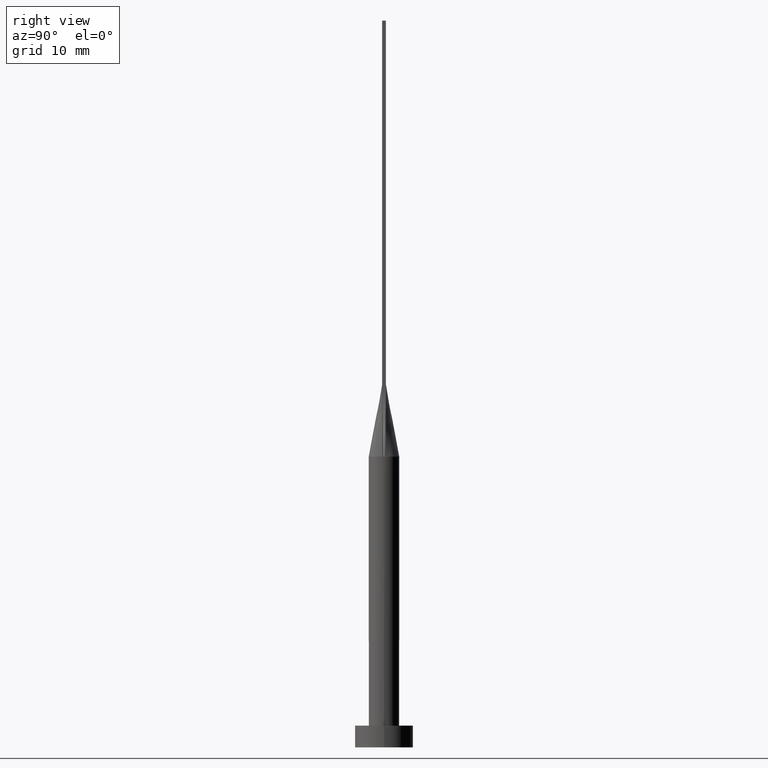
[diagram: clean part render]
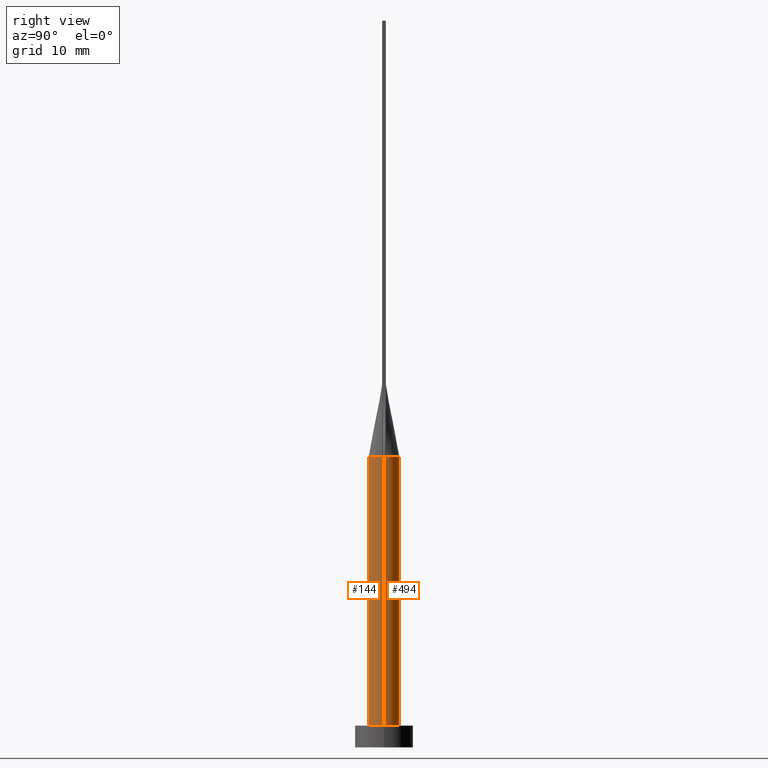
[diagram: same view with one multi-face feature highlighted, each face labeled with its STEP entity id]
A machine part, right view. The highlighted faces form ONE feature: a constant-radius fillet chain: 2 tangent blend faces with common blend radius 2.1 mm. The faces share edges in the B-rep.
Their STEP definitions:
[1] entity #144 (Cylinder):
#3 = ORIENTED_EDGE ( 'NONE', *, *, #189, .T. ) ;
#16 = VERTEX_POINT ( 'NONE', #438 ) ;
#65 = ORIENTED_EDGE ( 'NONE', *, *, #239, .F. ) ;
#69 = ORIENTED_EDGE ( 'NONE', *, *, #548, .F. ) ;
#75 = EDGE_CURVE ( 'NONE', #335, #207, #285, .T. ) ;
#84 = AXIS2_PLACEMENT_3D ( 'NONE', #363, #316, #540 ) ;
#87 = CARTESIAN_POINT ( 'NONE',  ( -2.082216547150284924, -0.2739753355370637133, 40.00000000000000000 ) ) ;
#100 = CIRCLE ( 'NONE', #240, 2.100000000000000089 ) ;
#110 = CARTESIAN_POINT ( 'NONE',  ( 2.100000000000000089, 2.571758278209441957E-16, 40.00000000000000000 ) ) ;
#121 = DIRECTION ( 'NONE',  ( 1.000000000000000000, -2.131628207280300558E-14, 0.000000000000000000 ) ) ;
#123 = VECTOR ( 'NONE', #502, 1000.000000000000000 ) ;
#130 = EDGE_LOOP ( 'NONE', ( #69, #65, #206, #226, #3, #563 ) ) ;
#144 = ADVANCED_FACE ( 'NONE', ( #580 ), #183, .T. ) ;
#145 = CARTESIAN_POINT ( 'NONE',  ( 2.082216499796571085, -0.2739752411676472654, 40.00000000000000000 ) ) ;
#151 = AXIS2_PLACEMENT_3D ( 'NONE', #537, #577, #179 ) ;
#161 = VECTOR ( 'NONE', #437, 1000.000000000000000 ) ;
#163 = CARTESIAN_POINT ( 'NONE',  ( 0.000000000000000000, 0.000000000000000000, 40.00000000000000000 ) ) ;
#179 = DIRECTION ( 'NONE',  ( 1.000000000000000000, 0.000000000000000000, 0.000000000000000000 ) ) ;
#183 = CYLINDRICAL_SURFACE ( 'NONE', #84, 2.100000000000000089 ) ;
#189 = EDGE_CURVE ( 'NONE', #16, #380, #323, .T. ) ;
#206 = ORIENTED_EDGE ( 'NONE', *, *, #75, .F. ) ;
#207 = VERTEX_POINT ( 'NONE', #145 ) ;
#226 = ORIENTED_EDGE ( 'NONE', *, *, #435, .F. ) ;
#239 = EDGE_CURVE ( 'NONE', #207, #308, #564, .T. ) ;
#240 = AXIS2_PLACEMENT_3D ( 'NONE', #572, #477, #251 ) ;
#241 = CARTESIAN_POINT ( 'NONE',  ( 0.000000000000000000, 0.000000000000000000, 40.00000000000000000 ) ) ;
#251 = DIRECTION ( 'NONE',  ( 1.000000000000000000, 0.000000000000000000, 0.000000000000000000 ) ) ;
#285 = CIRCLE ( 'NONE', #402, 2.100000000000000089 ) ;
#306 = CARTESIAN_POINT ( 'NONE',  ( 2.099961659741046649, 5.289748680732500402E-16, 40.00000000000000000 ) ) ;
#308 = VERTEX_POINT ( 'NONE', #306 ) ;
#315 = CARTESIAN_POINT ( 'NONE',  ( -2.100000000000000089, 0.000000000000000000, 40.00000000000000000 ) ) ;
#316 = DIRECTION ( 'NONE',  ( -0.000000000000000000, -0.000000000000000000, -1.000000000000000000 ) ) ;
#323 = LINE ( 'NONE', #315, #123 ) ;
#333 = CARTESIAN_POINT ( 'NONE',  ( 2.100000000000000089, 2.571758278209441957E-16, 3.000000000000000000 ) ) ;
#335 = VERTEX_POINT ( 'NONE', #87 ) ;
#340 = DIRECTION ( 'NONE',  ( 0.000000000000000000, 0.000000000000000000, 1.000000000000000000 ) ) ;
#363 = CARTESIAN_POINT ( 'NONE',  ( 0.000000000000000000, 0.000000000000000000, 40.00000000000000000 ) ) ;
#380 = VERTEX_POINT ( 'NONE', #578 ) ;
#402 = AXIS2_PLACEMENT_3D ( 'NONE', #241, #415, #465 ) ;
#415 = DIRECTION ( 'NONE',  ( 0.000000000000000000, 0.000000000000000000, 1.000000000000000000 ) ) ;
#428 = LINE ( 'NONE', #110, #161 ) ;
#435 = EDGE_CURVE ( 'NONE', #16, #335, #526, .T. ) ;
#437 = DIRECTION ( 'NONE',  ( -0.000000000000000000, -0.000000000000000000, -1.000000000000000000 ) ) ;
#438 = CARTESIAN_POINT ( 'NONE',  ( -2.099961659741046649, -5.286755615166558459E-16, 40.00000000000000000 ) ) ;
#465 = DIRECTION ( 'NONE',  ( 1.000000000000000000, 0.000000000000000000, 0.000000000000000000 ) ) ;
#477 = DIRECTION ( 'NONE',  ( 0.000000000000000000, 0.000000000000000000, 1.000000000000000000 ) ) ;
#496 = AXIS2_PLACEMENT_3D ( 'NONE', #163, #340, #121 ) ;
#502 = DIRECTION ( 'NONE',  ( -0.000000000000000000, -0.000000000000000000, -1.000000000000000000 ) ) ;
#526 = CIRCLE ( 'NONE', #151, 2.100000000000000089 ) ;
#536 = VERTEX_POINT ( 'NONE', #333 ) ;
#537 = CARTESIAN_POINT ( 'NONE',  ( 0.000000000000000000, 0.000000000000000000, 40.00000000000000000 ) ) ;
#540 = DIRECTION ( 'NONE',  ( -1.000000000000000000, 0.000000000000000000, 0.000000000000000000 ) ) ;
#548 = EDGE_CURVE ( 'NONE', #308, #536, #428, .T. ) ;
#562 = EDGE_CURVE ( 'NONE', #380, #536, #100, .T. ) ;
#563 = ORIENTED_EDGE ( 'NONE', *, *, #562, .T. ) ;
#564 = CIRCLE ( 'NONE', #496, 2.100000000000000089 ) ;
#572 = CARTESIAN_POINT ( 'NONE',  ( 0.000000000000000000, 0.000000000000000000, 3.000000000000000000 ) ) ;
#577 = DIRECTION ( 'NONE',  ( 0.000000000000000000, 0.000000000000000000, 1.000000000000000000 ) ) ;
#578 = CARTESIAN_POINT ( 'NONE',  ( -2.100000000000000089, 0.000000000000000000, 3.000000000000000000 ) ) ;
#580 = FACE_OUTER_BOUND ( 'NONE', #130, .T. ) ;
[2] entity #494 (Cylinder):
#2 = CIRCLE ( 'NONE', #413, 2.100000000000000089 ) ;
#8 = CARTESIAN_POINT ( 'NONE',  ( -1.843490440271193798, 1.028323931880310349, 39.99999999999999289 ) ) ;
#12 = CARTESIAN_POINT ( 'NONE',  ( -0.3069641454662043190, 2.100000000000000533, 40.00000000000000000 ) ) ;
#16 = VERTEX_POINT ( 'NONE', #438 ) ;
#43 = CARTESIAN_POINT ( 'NONE',  ( 2.013179673790353341, 0.6348343983169372207, 39.99999999999999289 ) ) ;
#53 = CARTESIAN_POINT ( 'NONE',  ( -1.144666002056102361, 1.784802689656027619, 40.00000000000000000 ) ) ;
#57 = CARTESIAN_POINT ( 'NONE',  ( 0.000000000000000000, 0.000000000000000000, 40.00000000000000000 ) ) ;
#73 = AXIS2_PLACEMENT_3D ( 'NONE', #357, #225, #397 ) ;
#106 = FACE_OUTER_BOUND ( 'NONE', #479, .T. ) ;
#108 = ORIENTED_EDGE ( 'NONE', *, *, #122, .F. ) ;
#110 = CARTESIAN_POINT ( 'NONE',  ( 2.100000000000000089, 2.571758278209441957E-16, 40.00000000000000000 ) ) ;
#122 = EDGE_CURVE ( 'NONE', #308, #576, #231, .T. ) ;
#123 = VECTOR ( 'NONE', #502, 1000.000000000000000 ) ;
#127 = CARTESIAN_POINT ( 'NONE',  ( 2.082200219287980492, 0.2739732417105839035, 40.00000000000000000 ) ) ;
#140 = CARTESIAN_POINT ( 'NONE',  ( 1.719140910005030110, 1.233222546295088762, 39.99999999999999289 ) ) ;
#157 = ORIENTED_EDGE ( 'NONE', *, *, #189, .F. ) ;
#161 = VECTOR ( 'NONE', #437, 1000.000000000000000 ) ;
#189 = EDGE_CURVE ( 'NONE', #16, #380, #323, .T. ) ;
#210 = ORIENTED_EDGE ( 'NONE', *, *, #548, .T. ) ;
#225 = DIRECTION ( 'NONE',  ( 0.000000000000000000, 0.000000000000000000, 1.000000000000000000 ) ) ;
#231 = CIRCLE ( 'NONE', #302, 2.100000000000000089 ) ;
#237 = CARTESIAN_POINT ( 'NONE',  ( -2.059419575438525385, 0.4459762599261216653, 40.00000000000000711 ) ) ;
#242 = DIRECTION ( 'NONE',  ( -0.000000000000000000, -0.000000000000000000, -1.000000000000000000 ) ) ;
#243 = CARTESIAN_POINT ( 'NONE',  ( 1.144666002056102583, 1.784802689656027397, 40.00000000000000000 ) ) ;
#245 = CARTESIAN_POINT ( 'NONE',  ( -2.013179673790353341, 0.6348343983169374427, 39.99999999999998579 ) ) ;
#249 = ORIENTED_EDGE ( 'NONE', *, *, #507, .T. ) ;
#267 = ORIENTED_EDGE ( 'NONE', *, *, #434, .F. ) ;
#268 = CARTESIAN_POINT ( 'NONE',  ( 2.082200219287980492, 0.2739732417105839035, 40.00000000000000000 ) ) ;
#272 = CARTESIAN_POINT ( 'NONE',  ( 0.000000000000000000, 0.000000000000000000, 40.00000000000000000 ) ) ;
#274 = DIRECTION ( 'NONE',  ( 0.000000000000000000, 0.000000000000000000, 1.000000000000000000 ) ) ;
#282 = CARTESIAN_POINT ( 'NONE',  ( 1.370324685961209044, 1.611984358543462781, 39.99999999999998579 ) ) ;
#289 = CARTESIAN_POINT ( 'NONE',  ( -1.719140910005030554, 1.233222546295088762, 40.00000000000000000 ) ) ;
#294 = CARTESIAN_POINT ( 'NONE',  ( 0.000000000000000000, 0.000000000000000000, 3.000000000000000000 ) ) ;
#298 = DIRECTION ( 'NONE',  ( 1.000000000000000000, 0.000000000000000000, 0.000000000000000000 ) ) ;
#302 = AXIS2_PLACEMENT_3D ( 'NONE', #272, #274, #452 ) ;
#306 = CARTESIAN_POINT ( 'NONE',  ( 2.099961659741046649, 5.289748680732500402E-16, 40.00000000000000000 ) ) ;
#308 = VERTEX_POINT ( 'NONE', #306 ) ;
#315 = CARTESIAN_POINT ( 'NONE',  ( -2.100000000000000089, 0.000000000000000000, 40.00000000000000000 ) ) ;
#323 = LINE ( 'NONE', #315, #123 ) ;
#329 = CIRCLE ( 'NONE', #73, 2.100000000000000089 ) ;
#333 = CARTESIAN_POINT ( 'NONE',  ( 2.100000000000000089, 2.571758278209441957E-16, 3.000000000000000000 ) ) ;
#357 = CARTESIAN_POINT ( 'NONE',  ( 0.000000000000000000, 0.000000000000000000, 40.00000000000000000 ) ) ;
#380 = VERTEX_POINT ( 'NONE', #578 ) ;
#383 = CARTESIAN_POINT ( 'NONE',  ( 0.6126365619873356261, 2.029890967560284754, 40.00000000000000000 ) ) ;
#393 = DIRECTION ( 'NONE',  ( 0.000000000000000000, 0.000000000000000000, 1.000000000000000000 ) ) ;
#397 = DIRECTION ( 'NONE',  ( 1.000000000000000000, 0.000000000000000000, 0.000000000000000000 ) ) ;
#401 = CARTESIAN_POINT ( 'NONE',  ( 1.843490440271194020, 1.028323931880309905, 39.99999999999997868 ) ) ;
#413 = AXIS2_PLACEMENT_3D ( 'NONE', #294, #393, #298 ) ;
#428 = LINE ( 'NONE', #110, #161 ) ;
#434 = EDGE_CURVE ( 'NONE', #566, #16, #329, .T. ) ;
#437 = DIRECTION ( 'NONE',  ( -0.000000000000000000, -0.000000000000000000, -1.000000000000000000 ) ) ;
#438 = CARTESIAN_POINT ( 'NONE',  ( -2.099961659741046649, -5.286755615166558459E-16, 40.00000000000000000 ) ) ;
#452 = DIRECTION ( 'NONE',  ( 1.000000000000000000, 0.000000000000000000, 0.000000000000000000 ) ) ;
#460 = EDGE_CURVE ( 'NONE', #576, #566, #569, .T. ) ;
#461 = CARTESIAN_POINT ( 'NONE',  ( 0.3069641454662044300, 2.100000000000000089, 40.00000000000000000 ) ) ;
#468 = DIRECTION ( 'NONE',  ( -1.000000000000000000, 0.000000000000000000, 0.000000000000000000 ) ) ;
#479 = EDGE_LOOP ( 'NONE', ( #108, #210, #249, #157, #267, #520 ) ) ;
#494 = ADVANCED_FACE ( 'NONE', ( #106 ), #509, .T. ) ;
#497 = AXIS2_PLACEMENT_3D ( 'NONE', #57, #242, #468 ) ;
#499 = CARTESIAN_POINT ( 'NONE',  ( 2.059419575438525385, 0.4459762599261217764, 40.00000000000000711 ) ) ;
#502 = DIRECTION ( 'NONE',  ( -0.000000000000000000, -0.000000000000000000, -1.000000000000000000 ) ) ;
#506 = CARTESIAN_POINT ( 'NONE',  ( -0.6126365619873356261, 2.029890967560284754, 40.00000000000000000 ) ) ;
#507 = EDGE_CURVE ( 'NONE', #536, #380, #2, .T. ) ;
#509 = CYLINDRICAL_SURFACE ( 'NONE', #497, 2.100000000000000089 ) ;
#511 = CARTESIAN_POINT ( 'NONE',  ( -1.370324685961209266, 1.611984358543462559, 39.99999999999999289 ) ) ;
#520 = ORIENTED_EDGE ( 'NONE', *, *, #460, .F. ) ;
#532 = CARTESIAN_POINT ( 'NONE',  ( -2.082200117151096208, 0.2739731464735293276, 40.00000000000000000 ) ) ;
#536 = VERTEX_POINT ( 'NONE', #333 ) ;
#548 = EDGE_CURVE ( 'NONE', #308, #536, #428, .T. ) ;
#551 = CARTESIAN_POINT ( 'NONE',  ( -2.082200117151096208, 0.2739731464735293276, 40.00000000000000000 ) ) ;
#566 = VERTEX_POINT ( 'NONE', #532 ) ;
#569 = B_SPLINE_CURVE_WITH_KNOTS ( 'NONE', 3,
 ( #268, #499, #43, #401, #140, #282, #243, #383, #461, #12, #506, #53, #511, #289, #8, #245, #237, #551 ),
 .UNSPECIFIED., .F., .F.,
 ( 4, 2, 2, 2, 2, 2, 2, 2, 4 ),
 ( 0.000000000000000000, 0.1250000000000000000, 0.2500000000000000000, 0.3750000000000000000, 0.5000000000000000000, 0.6250000000000000000, 0.7500000000000000000, 0.8750000000000000000, 1.000000000000000000 ),
 .UNSPECIFIED. ) ;
#576 = VERTEX_POINT ( 'NONE', #127 ) ;
#578 = CARTESIAN_POINT ( 'NONE',  ( -2.100000000000000089, 0.000000000000000000, 3.000000000000000000 ) ) ;